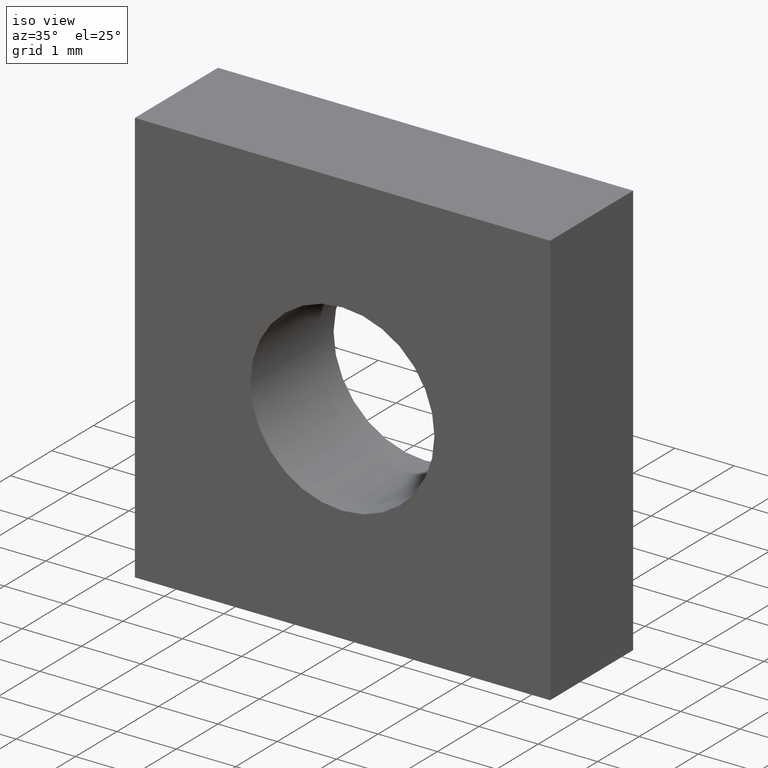
[diagram: clean part render]
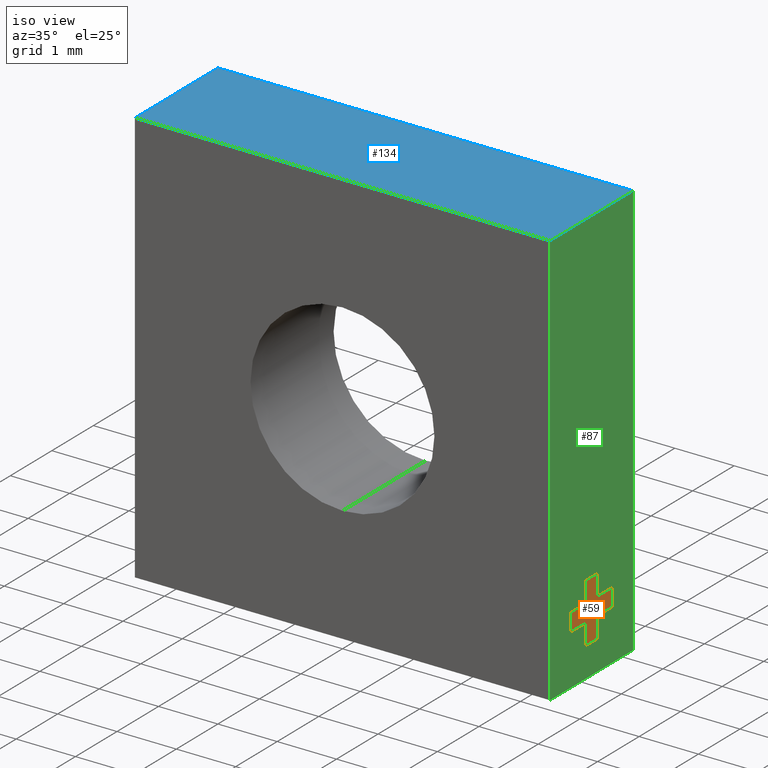
[diagram: same view with three faces highlighted in distinct colors, each labeled with its STEP entity id]
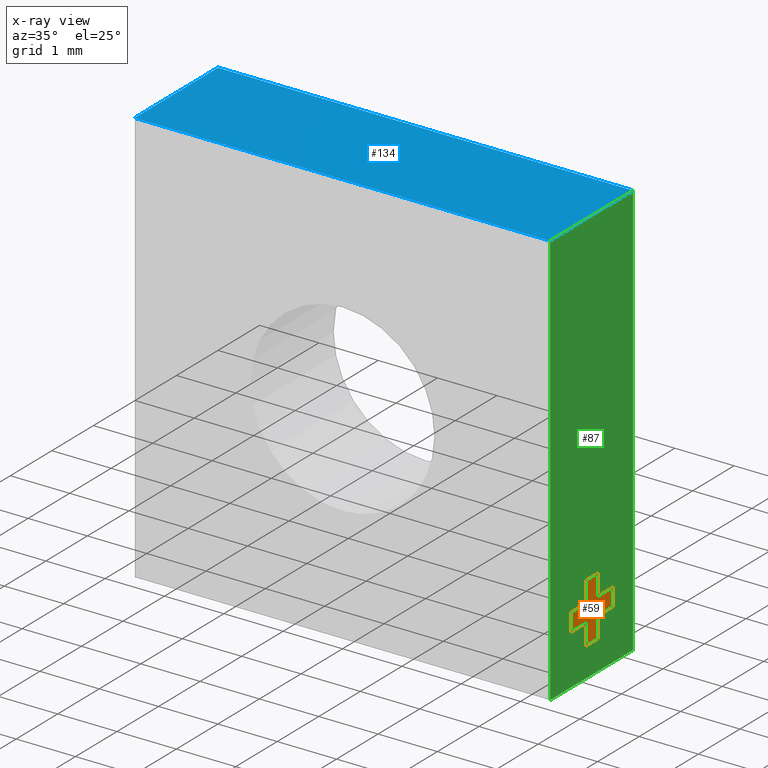
[diagram: x-ray of the same camera — body ghosted, the three highlighted faces saturated]
A machine part, iso view with three faces highlighted in distinct colors.
The next image is the same camera in x-ray (body ghosted, the three faces saturated) — at least one of them is partly hidden behind the body in this view.
Their STEP definitions:

[orange] entity #59 — the highlighted planar face has unit normal (-1, 0, 0).
#7 = VECTOR ( 'NONE', #401, 1000.000000000000000 ) ;
#9 = VECTOR ( 'NONE', #182, 1000.000000000000000 ) ;
#16 = VECTOR ( 'NONE', #155, 1000.000000000000000 ) ;
#18 = VECTOR ( 'NONE', #348, 1000.000000000000000 ) ;
#23 = CARTESIAN_POINT ( 'NONE',  ( 3.499999999999999600, 1.500000000000001600, -2.350000000000002300 ) ) ;
#24 = VERTEX_POINT ( 'NONE', #23 ) ;
#27 = VERTEX_POINT ( 'NONE', #140 ) ;
#29 = DIRECTION ( 'NONE',  ( -1.000000000000000000, 0.0000000000000000000, 6.195440985631455300E-017 ) ) ;
#32 = CARTESIAN_POINT ( 'NONE',  ( 3.499999999999999600, 1.500000000000001600, -2.650000000000002100 ) ) ;
#36 = LINE ( 'NONE', #408, #16 ) ;
#49 = LINE ( 'NONE', #61, #18 ) ;
#59 = ADVANCED_FACE ( 'NONE', ( #152 ), #276, .F. ) ;
#61 = CARTESIAN_POINT ( 'NONE',  ( 3.499999999999999600, 0.8500000000000015300, -2.650000000000002100 ) ) ;
#62 = VERTEX_POINT ( 'NONE', #32 ) ;
#63 = DIRECTION ( 'NONE',  ( 0.0000000000000000000, 1.000000000000000000, -0.0000000000000000000 ) ) ;
#70 = CARTESIAN_POINT ( 'NONE',  ( 3.499999999999999600, 0.8500000000000015300, -2.350000000000000500 ) ) ;
#78 = CARTESIAN_POINT ( 'NONE',  ( 3.499999999999999600, 1.150000000000001500, -2.650000000000002100 ) ) ;
#80 = DIRECTION ( 'NONE',  ( 6.195440985631455300E-017, -0.0000000000000000000, 1.000000000000000000 ) ) ;
#83 = ORIENTED_EDGE ( 'NONE', *, *, #463, .T. ) ;
#84 = ORIENTED_EDGE ( 'NONE', *, *, #163, .T. ) ;
#96 = CARTESIAN_POINT ( 'NONE',  ( 3.499999999999999600, 1.150000000000001500, -2.000000000000000000 ) ) ;
#99 = EDGE_CURVE ( 'NONE', #377, #458, #503, .T. ) ;
#112 = ORIENTED_EDGE ( 'NONE', *, *, #269, .T. ) ;
#116 = DIRECTION ( 'NONE',  ( -3.838348900644204700E-031, -1.000000000000000000, -6.195440985631453300E-015 ) ) ;
#119 = ORIENTED_EDGE ( 'NONE', *, *, #330, .T. ) ;
#123 = VERTEX_POINT ( 'NONE', #438 ) ;
#125 = LINE ( 'NONE', #78, #337 ) ;
#132 = EDGE_CURVE ( 'NONE', #458, #203, #286, .T. ) ;
#138 = CARTESIAN_POINT ( 'NONE',  ( 3.499999999999999600, 1.150000000000001500, -2.000000000000000000 ) ) ;
#140 = CARTESIAN_POINT ( 'NONE',  ( 3.499999999999999600, 1.150000000000001500, -2.650000000000002100 ) ) ;
#152 = FACE_OUTER_BOUND ( 'NONE', #386, .T. ) ;
#155 = DIRECTION ( 'NONE',  ( 0.0000000000000000000, -1.000000000000000000, 0.0000000000000000000 ) ) ;
#160 = EDGE_CURVE ( 'NONE', #24, #260, #375, .T. ) ;
#163 = EDGE_CURVE ( 'NONE', #123, #177, #257, .T. ) ;
#164 = ORIENTED_EDGE ( 'NONE', *, *, #245, .T. ) ;
#165 = ORIENTED_EDGE ( 'NONE', *, *, #353, .T. ) ;
#166 = VECTOR ( 'NONE', #519, 1000.000000000000000 ) ;
#169 = ORIENTED_EDGE ( 'NONE', *, *, #160, .T. ) ;
#170 = ORIENTED_EDGE ( 'NONE', *, *, #409, .T. ) ;
#177 = VERTEX_POINT ( 'NONE', #520 ) ;
#182 = DIRECTION ( 'NONE',  ( 6.195440985631455300E-017, -0.0000000000000000000, 1.000000000000000000 ) ) ;
#203 = VERTEX_POINT ( 'NONE', #363 ) ;
#215 = LINE ( 'NONE', #491, #7 ) ;
#223 = VERTEX_POINT ( 'NONE', #138 ) ;
#224 = ORIENTED_EDGE ( 'NONE', *, *, #132, .T. ) ;
#228 = DIRECTION ( 'NONE',  ( 6.195440985631455300E-017, 0.0000000000000000000, 1.000000000000000000 ) ) ;
#239 = LINE ( 'NONE', #451, #460 ) ;
#245 = EDGE_CURVE ( 'NONE', #203, #123, #49, .T. ) ;
#257 = LINE ( 'NONE', #264, #470 ) ;
#260 = VERTEX_POINT ( 'NONE', #385 ) ;
#264 = CARTESIAN_POINT ( 'NONE',  ( 3.499999999999999600, 1.150000000000001500, -3.000000000000000000 ) ) ;
#269 = EDGE_CURVE ( 'NONE', #260, #223, #342, .T. ) ;
#271 = CARTESIAN_POINT ( 'NONE',  ( 3.499999999999999600, 2.000000000000000000, -3.500000000000000000 ) ) ;
#276 = PLANE ( 'NONE',  #513 ) ;
#278 = CARTESIAN_POINT ( 'NONE',  ( 3.499999999999999600, 0.8500000000000015300, -2.000000000000000000 ) ) ;
#281 = VERTEX_POINT ( 'NONE', #278 ) ;
#286 = LINE ( 'NONE', #349, #414 ) ;
#315 = CARTESIAN_POINT ( 'NONE',  ( 3.499999999999999600, 0.8500000000000015300, -2.000000000000000000 ) ) ;
#318 = VERTEX_POINT ( 'NONE', #70 ) ;
#324 = DIRECTION ( 'NONE',  ( -6.195440985631455300E-017, 0.0000000000000000000, -1.000000000000000000 ) ) ;
#330 = EDGE_CURVE ( 'NONE', #27, #62, #497, .T. ) ;
#334 = EDGE_CURVE ( 'NONE', #318, #377, #239, .T. ) ;
#337 = VECTOR ( 'NONE', #80, 1000.000000000000000 ) ;
#342 = LINE ( 'NONE', #96, #9 ) ;
#348 = DIRECTION ( 'NONE',  ( -6.195440985631455300E-017, 0.0000000000000000000, -1.000000000000000000 ) ) ;
#349 = CARTESIAN_POINT ( 'NONE',  ( 3.499999999999999600, 0.8500000000000015300, -2.650000000000002100 ) ) ;
#353 = EDGE_CURVE ( 'NONE', #223, #281, #36, .T. ) ;
#357 = EDGE_CURVE ( 'NONE', #177, #27, #125, .T. ) ;
#363 = CARTESIAN_POINT ( 'NONE',  ( 3.499999999999999600, 0.8500000000000015300, -2.650000000000002100 ) ) ;
#365 = CARTESIAN_POINT ( 'NONE',  ( 3.499999999999999600, 0.5000000000000015500, -2.350000000000002800 ) ) ;
#375 = LINE ( 'NONE', #486, #489 ) ;
#377 = VERTEX_POINT ( 'NONE', #365 ) ;
#378 = ORIENTED_EDGE ( 'NONE', *, *, #99, .T. ) ;
#381 = VECTOR ( 'NONE', #527, 1000.000000000000000 ) ;
#385 = CARTESIAN_POINT ( 'NONE',  ( 3.499999999999999600, 1.150000000000001500, -2.350000000000002300 ) ) ;
#386 = EDGE_LOOP ( 'NONE', ( #492, #378, #224, #164, #84, #433, #119, #170, #169, #112, #165, #83 ) ) ;
#387 = VECTOR ( 'NONE', #324, 1000.000000000000000 ) ;
#401 = DIRECTION ( 'NONE',  ( 6.195440985631455300E-017, -0.0000000000000000000, 1.000000000000000000 ) ) ;
#408 = CARTESIAN_POINT ( 'NONE',  ( 3.499999999999999600, 1.150000000000001500, -2.000000000000000000 ) ) ;
#409 = EDGE_CURVE ( 'NONE', #62, #24, #215, .T. ) ;
#414 = VECTOR ( 'NONE', #63, 1000.000000000000000 ) ;
#433 = ORIENTED_EDGE ( 'NONE', *, *, #357, .T. ) ;
#434 = CARTESIAN_POINT ( 'NONE',  ( 3.499999999999999600, 0.5000000000000015500, -2.350000000000002800 ) ) ;
#438 = CARTESIAN_POINT ( 'NONE',  ( 3.499999999999999600, 0.8500000000000015300, -3.000000000000000000 ) ) ;
#444 = DIRECTION ( 'NONE',  ( 0.0000000000000000000, 1.000000000000000000, -0.0000000000000000000 ) ) ;
#451 = CARTESIAN_POINT ( 'NONE',  ( 3.499999999999999600, 0.8500000000000015300, -2.350000000000000500 ) ) ;
#458 = VERTEX_POINT ( 'NONE', #526 ) ;
#460 = VECTOR ( 'NONE', #116, 1000.000000000000000 ) ;
#463 = EDGE_CURVE ( 'NONE', #281, #318, #502, .T. ) ;
#470 = VECTOR ( 'NONE', #444, 1000.000000000000000 ) ;
#486 = CARTESIAN_POINT ( 'NONE',  ( 3.499999999999999600, 1.500000000000001600, -2.350000000000002300 ) ) ;
#489 = VECTOR ( 'NONE', #510, 1000.000000000000000 ) ;
#491 = CARTESIAN_POINT ( 'NONE',  ( 3.499999999999999600, 1.500000000000001600, -2.350000000000002300 ) ) ;
#492 = ORIENTED_EDGE ( 'NONE', *, *, #334, .T. ) ;
#497 = LINE ( 'NONE', #518, #381 ) ;
#502 = LINE ( 'NONE', #315, #387 ) ;
#503 = LINE ( 'NONE', #434, #166 ) ;
#510 = DIRECTION ( 'NONE',  ( 0.0000000000000000000, -1.000000000000000000, 0.0000000000000000000 ) ) ;
#513 = AXIS2_PLACEMENT_3D ( 'NONE', #271, #29, #228 ) ;
#518 = CARTESIAN_POINT ( 'NONE',  ( 3.499999999999999600, 1.500000000000001600, -2.650000000000002100 ) ) ;
#519 = DIRECTION ( 'NONE',  ( -6.195440985631455300E-017, 0.0000000000000000000, -1.000000000000000000 ) ) ;
#520 = CARTESIAN_POINT ( 'NONE',  ( 3.499999999999999600, 1.150000000000001500, -3.000000000000000000 ) ) ;
#526 = CARTESIAN_POINT ( 'NONE',  ( 3.499999999999999600, 0.5000000000000015500, -2.650000000000002100 ) ) ;
#527 = DIRECTION ( 'NONE',  ( 0.0000000000000000000, 1.000000000000000000, -0.0000000000000000000 ) ) ;

[blue] entity #134 — the highlighted planar face has unit normal (-0, 0, -1).
#6 = EDGE_CURVE ( 'NONE', #362, #265, #137, .T. ) ;
#14 = ORIENTED_EDGE ( 'NONE', *, *, #6, .T. ) ;
#37 = CARTESIAN_POINT ( 'NONE',  ( -3.499999999999999100, 2.000000000000000000, 3.500000000000000900 ) ) ;
#58 = EDGE_CURVE ( 'NONE', #402, #525, #380, .T. ) ;
#66 = CARTESIAN_POINT ( 'NONE',  ( 3.500000000000000000, 0.0000000000000000000, 3.500000000000000000 ) ) ;
#73 = DIRECTION ( 'NONE',  ( -1.000000000000000000, 0.0000000000000000000, 1.239088197126291300E-016 ) ) ;
#79 = VECTOR ( 'NONE', #180, 1000.000000000000000 ) ;
#105 = EDGE_CURVE ( 'NONE', #525, #265, #390, .T. ) ;
#108 = CARTESIAN_POINT ( 'NONE',  ( 3.500000000000000000, 2.000000000000000000, 3.500000000000000000 ) ) ;
#131 = ORIENTED_EDGE ( 'NONE', *, *, #105, .F. ) ;
#134 = ADVANCED_FACE ( 'NONE', ( #396 ), #392, .F. ) ;
#137 = LINE ( 'NONE', #178, #364 ) ;
#178 = CARTESIAN_POINT ( 'NONE',  ( -3.499999999999999100, 0.0000000000000000000, 3.500000000000000900 ) ) ;
#180 = DIRECTION ( 'NONE',  ( -0.0000000000000000000, -1.000000000000000000, -0.0000000000000000000 ) ) ;
#197 = EDGE_LOOP ( 'NONE', ( #14, #131, #303, #345 ) ) ;
#207 = VECTOR ( 'NONE', #484, 1000.000000000000000 ) ;
#246 = CARTESIAN_POINT ( 'NONE',  ( -3.499999999999999100, 2.000000000000000000, 3.500000000000000900 ) ) ;
#256 = DIRECTION ( 'NONE',  ( 1.000000000000000000, 0.0000000000000000000, -1.239088197126291100E-016 ) ) ;
#265 = VERTEX_POINT ( 'NONE', #66 ) ;
#279 = DIRECTION ( 'NONE',  ( -0.0000000000000000000, -1.000000000000000000, -0.0000000000000000000 ) ) ;
#285 = CARTESIAN_POINT ( 'NONE',  ( -3.499999999999999100, 0.0000000000000000000, 3.500000000000000900 ) ) ;
#303 = ORIENTED_EDGE ( 'NONE', *, *, #58, .F. ) ;
#308 = AXIS2_PLACEMENT_3D ( 'NONE', #351, #423, #73 ) ;
#345 = ORIENTED_EDGE ( 'NONE', *, *, #430, .T. ) ;
#351 = CARTESIAN_POINT ( 'NONE',  ( -3.499999999999999100, 2.000000000000000000, 3.500000000000000900 ) ) ;
#362 = VERTEX_POINT ( 'NONE', #285 ) ;
#364 = VECTOR ( 'NONE', #256, 1000.000000000000000 ) ;
#380 = LINE ( 'NONE', #521, #207 ) ;
#390 = LINE ( 'NONE', #509, #79 ) ;
#392 = PLANE ( 'NONE',  #308 ) ;
#396 = FACE_OUTER_BOUND ( 'NONE', #197, .T. ) ;
#402 = VERTEX_POINT ( 'NONE', #246 ) ;
#404 = LINE ( 'NONE', #37, #506 ) ;
#423 = DIRECTION ( 'NONE',  ( -1.239088197126291300E-016, 0.0000000000000000000, -1.000000000000000000 ) ) ;
#430 = EDGE_CURVE ( 'NONE', #402, #362, #404, .T. ) ;
#484 = DIRECTION ( 'NONE',  ( 1.000000000000000000, 0.0000000000000000000, -1.239088197126291100E-016 ) ) ;
#506 = VECTOR ( 'NONE', #279, 1000.000000000000000 ) ;
#509 = CARTESIAN_POINT ( 'NONE',  ( 3.500000000000000000, 2.000000000000000000, 3.500000000000000000 ) ) ;
#521 = CARTESIAN_POINT ( 'NONE',  ( -3.499999999999999100, 2.000000000000000000, 3.500000000000000900 ) ) ;
#525 = VERTEX_POINT ( 'NONE', #108 ) ;

[green] entity #87 — the highlighted planar face has unit normal (-1, 0, 0).
#7 = VECTOR ( 'NONE', #401, 1000.000000000000000 ) ;
#9 = VECTOR ( 'NONE', #182, 1000.000000000000000 ) ;
#10 = EDGE_CURVE ( 'NONE', #265, #474, #270, .T. ) ;
#12 = ORIENTED_EDGE ( 'NONE', *, *, #160, .F. ) ;
#16 = VECTOR ( 'NONE', #155, 1000.000000000000000 ) ;
#18 = VECTOR ( 'NONE', #348, 1000.000000000000000 ) ;
#23 = CARTESIAN_POINT ( 'NONE',  ( 3.499999999999999600, 1.500000000000001600, -2.350000000000002300 ) ) ;
#24 = VERTEX_POINT ( 'NONE', #23 ) ;
#27 = VERTEX_POINT ( 'NONE', #140 ) ;
#30 = EDGE_CURVE ( 'NONE', #525, #68, #82, .T. ) ;
#32 = CARTESIAN_POINT ( 'NONE',  ( 3.499999999999999600, 1.500000000000001600, -2.650000000000002100 ) ) ;
#36 = LINE ( 'NONE', #408, #16 ) ;
#43 = ORIENTED_EDGE ( 'NONE', *, *, #409, .F. ) ;
#49 = LINE ( 'NONE', #61, #18 ) ;
#54 = ORIENTED_EDGE ( 'NONE', *, *, #463, .F. ) ;
#55 = VECTOR ( 'NONE', #426, 1000.000000000000000 ) ;
#60 = ORIENTED_EDGE ( 'NONE', *, *, #10, .T. ) ;
#61 = CARTESIAN_POINT ( 'NONE',  ( 3.499999999999999600, 0.8500000000000015300, -2.650000000000002100 ) ) ;
#62 = VERTEX_POINT ( 'NONE', #32 ) ;
#63 = DIRECTION ( 'NONE',  ( 0.0000000000000000000, 1.000000000000000000, -0.0000000000000000000 ) ) ;
#66 = CARTESIAN_POINT ( 'NONE',  ( 3.500000000000000000, 0.0000000000000000000, 3.500000000000000000 ) ) ;
#68 = VERTEX_POINT ( 'NONE', #483 ) ;
#70 = CARTESIAN_POINT ( 'NONE',  ( 3.499999999999999600, 0.8500000000000015300, -2.350000000000000500 ) ) ;
#78 = CARTESIAN_POINT ( 'NONE',  ( 3.499999999999999600, 1.150000000000001500, -2.650000000000002100 ) ) ;
#79 = VECTOR ( 'NONE', #180, 1000.000000000000000 ) ;
#80 = DIRECTION ( 'NONE',  ( 6.195440985631455300E-017, -0.0000000000000000000, 1.000000000000000000 ) ) ;
#82 = LINE ( 'NONE', #422, #319 ) ;
#87 = ADVANCED_FACE ( 'NONE', ( #216, #115 ), #394, .F. ) ;
#96 = CARTESIAN_POINT ( 'NONE',  ( 3.499999999999999600, 1.150000000000001500, -2.000000000000000000 ) ) ;
#99 = EDGE_CURVE ( 'NONE', #377, #458, #503, .T. ) ;
#105 = EDGE_CURVE ( 'NONE', #525, #265, #390, .T. ) ;
#108 = CARTESIAN_POINT ( 'NONE',  ( 3.500000000000000000, 2.000000000000000000, 3.500000000000000000 ) ) ;
#115 = FACE_OUTER_BOUND ( 'NONE', #266, .T. ) ;
#116 = DIRECTION ( 'NONE',  ( -3.838348900644204700E-031, -1.000000000000000000, -6.195440985631453300E-015 ) ) ;
#123 = VERTEX_POINT ( 'NONE', #438 ) ;
#125 = LINE ( 'NONE', #78, #337 ) ;
#132 = EDGE_CURVE ( 'NONE', #458, #203, #286, .T. ) ;
#138 = CARTESIAN_POINT ( 'NONE',  ( 3.499999999999999600, 1.150000000000001500, -2.000000000000000000 ) ) ;
#140 = CARTESIAN_POINT ( 'NONE',  ( 3.499999999999999600, 1.150000000000001500, -2.650000000000002100 ) ) ;
#143 = AXIS2_PLACEMENT_3D ( 'NONE', #311, #262, #225 ) ;
#147 = CARTESIAN_POINT ( 'NONE',  ( 3.499999999999999600, 2.000000000000000000, -3.500000000000000000 ) ) ;
#155 = DIRECTION ( 'NONE',  ( 0.0000000000000000000, -1.000000000000000000, 0.0000000000000000000 ) ) ;
#156 = ORIENTED_EDGE ( 'NONE', *, *, #334, .F. ) ;
#157 = ORIENTED_EDGE ( 'NONE', *, *, #99, .F. ) ;
#160 = EDGE_CURVE ( 'NONE', #24, #260, #375, .T. ) ;
#163 = EDGE_CURVE ( 'NONE', #123, #177, #257, .T. ) ;
#166 = VECTOR ( 'NONE', #519, 1000.000000000000000 ) ;
#173 = DIRECTION ( 'NONE',  ( -0.0000000000000000000, -1.000000000000000000, -0.0000000000000000000 ) ) ;
#177 = VERTEX_POINT ( 'NONE', #520 ) ;
#180 = DIRECTION ( 'NONE',  ( -0.0000000000000000000, -1.000000000000000000, -0.0000000000000000000 ) ) ;
#182 = DIRECTION ( 'NONE',  ( 6.195440985631455300E-017, -0.0000000000000000000, 1.000000000000000000 ) ) ;
#193 = ORIENTED_EDGE ( 'NONE', *, *, #30, .F. ) ;
#203 = VERTEX_POINT ( 'NONE', #363 ) ;
#209 = EDGE_CURVE ( 'NONE', #68, #474, #350, .T. ) ;
#215 = LINE ( 'NONE', #491, #7 ) ;
#216 = FACE_BOUND ( 'NONE', #476, .T. ) ;
#223 = VERTEX_POINT ( 'NONE', #138 ) ;
#225 = DIRECTION ( 'NONE',  ( 6.195440985631455300E-017, 0.0000000000000000000, 1.000000000000000000 ) ) ;
#236 = ORIENTED_EDGE ( 'NONE', *, *, #245, .F. ) ;
#239 = LINE ( 'NONE', #451, #460 ) ;
#240 = VECTOR ( 'NONE', #173, 1000.000000000000000 ) ;
#245 = EDGE_CURVE ( 'NONE', #203, #123, #49, .T. ) ;
#257 = LINE ( 'NONE', #264, #470 ) ;
#260 = VERTEX_POINT ( 'NONE', #385 ) ;
#262 = DIRECTION ( 'NONE',  ( -1.000000000000000000, 0.0000000000000000000, 6.195440985631455300E-017 ) ) ;
#264 = CARTESIAN_POINT ( 'NONE',  ( 3.499999999999999600, 1.150000000000001500, -3.000000000000000000 ) ) ;
#265 = VERTEX_POINT ( 'NONE', #66 ) ;
#266 = EDGE_LOOP ( 'NONE', ( #60, #355, #193, #297 ) ) ;
#269 = EDGE_CURVE ( 'NONE', #260, #223, #342, .T. ) ;
#270 = LINE ( 'NONE', #384, #55 ) ;
#278 = CARTESIAN_POINT ( 'NONE',  ( 3.499999999999999600, 0.8500000000000015300, -2.000000000000000000 ) ) ;
#281 = VERTEX_POINT ( 'NONE', #278 ) ;
#286 = LINE ( 'NONE', #349, #414 ) ;
#290 = ORIENTED_EDGE ( 'NONE', *, *, #330, .F. ) ;
#293 = ORIENTED_EDGE ( 'NONE', *, *, #353, .F. ) ;
#297 = ORIENTED_EDGE ( 'NONE', *, *, #105, .T. ) ;
#311 = CARTESIAN_POINT ( 'NONE',  ( 3.499999999999999600, 2.000000000000000000, -3.500000000000000000 ) ) ;
#315 = CARTESIAN_POINT ( 'NONE',  ( 3.499999999999999600, 0.8500000000000015300, -2.000000000000000000 ) ) ;
#316 = ORIENTED_EDGE ( 'NONE', *, *, #357, .F. ) ;
#318 = VERTEX_POINT ( 'NONE', #70 ) ;
#319 = VECTOR ( 'NONE', #468, 1000.000000000000000 ) ;
#324 = DIRECTION ( 'NONE',  ( -6.195440985631455300E-017, 0.0000000000000000000, -1.000000000000000000 ) ) ;
#330 = EDGE_CURVE ( 'NONE', #27, #62, #497, .T. ) ;
#334 = EDGE_CURVE ( 'NONE', #318, #377, #239, .T. ) ;
#337 = VECTOR ( 'NONE', #80, 1000.000000000000000 ) ;
#342 = LINE ( 'NONE', #96, #9 ) ;
#348 = DIRECTION ( 'NONE',  ( -6.195440985631455300E-017, 0.0000000000000000000, -1.000000000000000000 ) ) ;
#349 = CARTESIAN_POINT ( 'NONE',  ( 3.499999999999999600, 0.8500000000000015300, -2.650000000000002100 ) ) ;
#350 = LINE ( 'NONE', #147, #240 ) ;
#353 = EDGE_CURVE ( 'NONE', #223, #281, #36, .T. ) ;
#355 = ORIENTED_EDGE ( 'NONE', *, *, #209, .F. ) ;
#357 = EDGE_CURVE ( 'NONE', #177, #27, #125, .T. ) ;
#363 = CARTESIAN_POINT ( 'NONE',  ( 3.499999999999999600, 0.8500000000000015300, -2.650000000000002100 ) ) ;
#365 = CARTESIAN_POINT ( 'NONE',  ( 3.499999999999999600, 0.5000000000000015500, -2.350000000000002800 ) ) ;
#375 = LINE ( 'NONE', #486, #489 ) ;
#377 = VERTEX_POINT ( 'NONE', #365 ) ;
#381 = VECTOR ( 'NONE', #527, 1000.000000000000000 ) ;
#384 = CARTESIAN_POINT ( 'NONE',  ( 3.499999999999999600, 0.0000000000000000000, -3.500000000000000000 ) ) ;
#385 = CARTESIAN_POINT ( 'NONE',  ( 3.499999999999999600, 1.150000000000001500, -2.350000000000002300 ) ) ;
#387 = VECTOR ( 'NONE', #324, 1000.000000000000000 ) ;
#390 = LINE ( 'NONE', #509, #79 ) ;
#394 = PLANE ( 'NONE',  #143 ) ;
#401 = DIRECTION ( 'NONE',  ( 6.195440985631455300E-017, -0.0000000000000000000, 1.000000000000000000 ) ) ;
#403 = ORIENTED_EDGE ( 'NONE', *, *, #269, .F. ) ;
#408 = CARTESIAN_POINT ( 'NONE',  ( 3.499999999999999600, 1.150000000000001500, -2.000000000000000000 ) ) ;
#409 = EDGE_CURVE ( 'NONE', #62, #24, #215, .T. ) ;
#411 = CARTESIAN_POINT ( 'NONE',  ( 3.499999999999999600, 0.0000000000000000000, -3.500000000000000000 ) ) ;
#414 = VECTOR ( 'NONE', #63, 1000.000000000000000 ) ;
#421 = ORIENTED_EDGE ( 'NONE', *, *, #163, .F. ) ;
#422 = CARTESIAN_POINT ( 'NONE',  ( 3.499999999999999600, 2.000000000000000000, -3.500000000000000000 ) ) ;
#426 = DIRECTION ( 'NONE',  ( -6.195440985631454100E-017, -0.0000000000000000000, -1.000000000000000000 ) ) ;
#434 = CARTESIAN_POINT ( 'NONE',  ( 3.499999999999999600, 0.5000000000000015500, -2.350000000000002800 ) ) ;
#438 = CARTESIAN_POINT ( 'NONE',  ( 3.499999999999999600, 0.8500000000000015300, -3.000000000000000000 ) ) ;
#444 = DIRECTION ( 'NONE',  ( 0.0000000000000000000, 1.000000000000000000, -0.0000000000000000000 ) ) ;
#451 = CARTESIAN_POINT ( 'NONE',  ( 3.499999999999999600, 0.8500000000000015300, -2.350000000000000500 ) ) ;
#458 = VERTEX_POINT ( 'NONE', #526 ) ;
#460 = VECTOR ( 'NONE', #116, 1000.000000000000000 ) ;
#463 = EDGE_CURVE ( 'NONE', #281, #318, #502, .T. ) ;
#468 = DIRECTION ( 'NONE',  ( -6.195440985631454100E-017, -0.0000000000000000000, -1.000000000000000000 ) ) ;
#470 = VECTOR ( 'NONE', #444, 1000.000000000000000 ) ;
#474 = VERTEX_POINT ( 'NONE', #411 ) ;
#476 = EDGE_LOOP ( 'NONE', ( #157, #156, #54, #293, #403, #12, #43, #290, #316, #421, #236, #501 ) ) ;
#483 = CARTESIAN_POINT ( 'NONE',  ( 3.499999999999999600, 2.000000000000000000, -3.500000000000000000 ) ) ;
#486 = CARTESIAN_POINT ( 'NONE',  ( 3.499999999999999600, 1.500000000000001600, -2.350000000000002300 ) ) ;
#489 = VECTOR ( 'NONE', #510, 1000.000000000000000 ) ;
#491 = CARTESIAN_POINT ( 'NONE',  ( 3.499999999999999600, 1.500000000000001600, -2.350000000000002300 ) ) ;
#497 = LINE ( 'NONE', #518, #381 ) ;
#501 = ORIENTED_EDGE ( 'NONE', *, *, #132, .F. ) ;
#502 = LINE ( 'NONE', #315, #387 ) ;
#503 = LINE ( 'NONE', #434, #166 ) ;
#509 = CARTESIAN_POINT ( 'NONE',  ( 3.500000000000000000, 2.000000000000000000, 3.500000000000000000 ) ) ;
#510 = DIRECTION ( 'NONE',  ( 0.0000000000000000000, -1.000000000000000000, 0.0000000000000000000 ) ) ;
#518 = CARTESIAN_POINT ( 'NONE',  ( 3.499999999999999600, 1.500000000000001600, -2.650000000000002100 ) ) ;
#519 = DIRECTION ( 'NONE',  ( -6.195440985631455300E-017, 0.0000000000000000000, -1.000000000000000000 ) ) ;
#520 = CARTESIAN_POINT ( 'NONE',  ( 3.499999999999999600, 1.150000000000001500, -3.000000000000000000 ) ) ;
#525 = VERTEX_POINT ( 'NONE', #108 ) ;
#526 = CARTESIAN_POINT ( 'NONE',  ( 3.499999999999999600, 0.5000000000000015500, -2.650000000000002100 ) ) ;
#527 = DIRECTION ( 'NONE',  ( 0.0000000000000000000, 1.000000000000000000, -0.0000000000000000000 ) ) ;